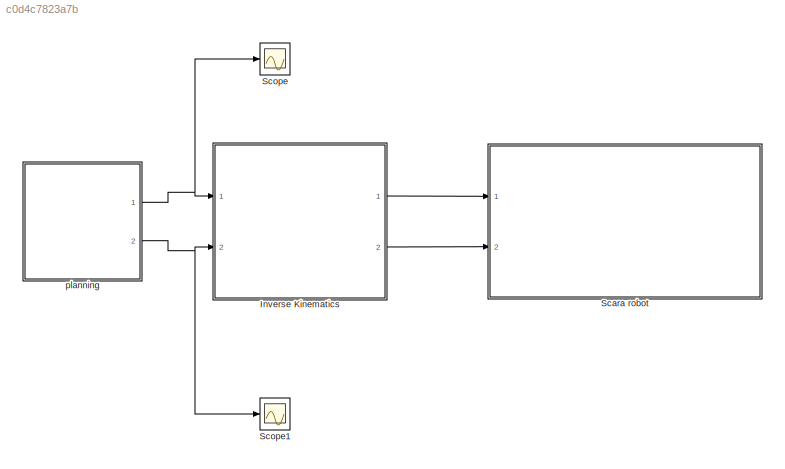
MODEL slx_c0d4c7823a7b
KIND model
CONFIG AbsTol = auto
CONFIG EnableMultiTasking = on
CONFIG FixedStep = auto
CONFIG MaxStep = auto
CONFIG MinStep = auto
CONFIG RelTol = 1e-3
CONFIG SampleTimeConstraint = Unconstrained
CONFIG SolverName = VariableStepAuto
CONFIG StartTime = 0.0
CONFIG StopTime = 20
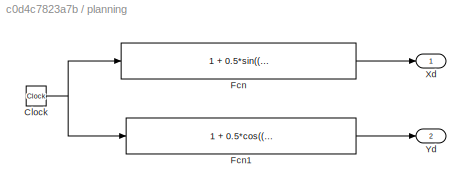
BLOCK [SubSystem]  planning
  Ports = [0, 2]
  RequestExecContextInheritance = off
BLOCK [Clock]  planning/Clock
BLOCK [Fcn]  planning/Fcn
  Expr = 1 + 0.5*sin((2*pi/5)*u + pi/2)
BLOCK [Fcn]  planning/Fcn1
  Expr = 1 + 0.5*cos((2*pi/5)*u + pi/2)
BLOCK [Outport]  planning/Xd
  VectorParamsAs1DForOutWhenUnconnected = off
BLOCK [Outport]  planning/Yd
  Port = 2
  VectorParamsAs1DForOutWhenUnconnected = off
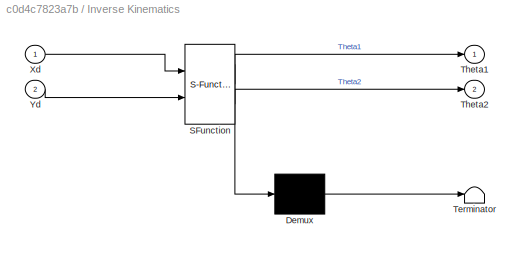
BLOCK [SubSystem] Inverse Kinematics
  ErrorFcn = Stateflow.Translate.translate
  PermitHierarchicalResolution = ExplicitOnly
  Ports = [2, 2]
  RequestExecContextInheritance = off
  SFBlockType = MATLAB Function
  TreatAsAtomicUnit = on
BLOCK [Demux] Inverse Kinematics/ Demux 
  Outputs = 1
  Ports = [1, 1]
BLOCK [S-Function] Inverse Kinematics/ SFunction 
  EnableBusSupport = on
  FunctionName = sf_sfun
  PortCounts = [2 3]
  Ports = [2, 3]
  SFcnIsStateOwnerBlock = off
  SFunctionDeploymentMode = off
  Tag = Stateflow S-Function 1
BLOCK [Terminator] Inverse Kinematics/ Terminator 
BLOCK [Outport] Inverse Kinematics/Theta1
  VectorParamsAs1DForOutWhenUnconnected = off
BLOCK [Outport] Inverse Kinematics/Theta2
  Port = 2
  VectorParamsAs1DForOutWhenUnconnected = off
BLOCK [Inport] Inverse Kinematics/Xd
BLOCK [Inport] Inverse Kinematics/Yd
  Port = 2
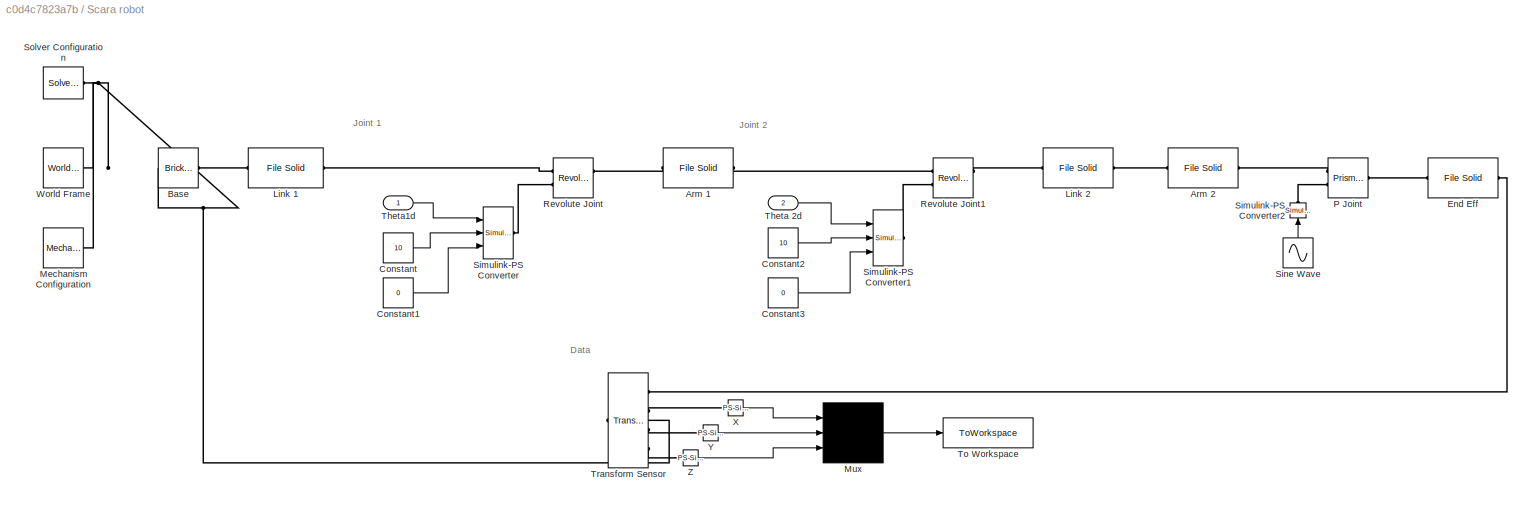
BLOCK [SubSystem] Scara robot
  Ports = [2]
  RequestExecContextInheritance = off
BLOCK [Reference] Scara robot/Arm 1  REF=sm_lib/Body Elements/File Solid
  NameLocation = top
  Ports = [0, 0, 0, 0, 0, 1, 1]
  SourceBlock = sm_lib/Body Elements/File Solid
  SourceProductBaseCode = MS
  SourceType = File Solid
BLOCK [Reference] Scara robot/Arm 2  REF=sm_lib/Body Elements/File Solid
  NameLocation = top
  Ports = [0, 0, 0, 0, 0, 1, 1]
  SourceBlock = sm_lib/Body Elements/File Solid
  SourceProductBaseCode = MS
  SourceType = File Solid
BLOCK [Reference] Scara robot/Base  REF=sm_lib/Body Elements/Brick Solid
  NameLocation = top
  Ports = [0, 0, 0, 0, 0, 1, 1]
  SourceBlock = sm_lib/Body Elements/Brick Solid
  SourceProductBaseCode = MS
  SourceType = Brick Solid
BLOCK [Constant] Scara robot/Constant
  Value = 10
BLOCK [Constant] Scara robot/Constant1
  Value = 0
BLOCK [Constant] Scara robot/Constant2
  Value = 10
BLOCK [Constant] Scara robot/Constant3
  Value = 0
BLOCK [Reference] Scara robot/End Eff  REF=sm_lib/Body Elements/File Solid
  NameLocation = top
  Ports = [0, 0, 0, 0, 0, 1, 1]
  SourceBlock = sm_lib/Body Elements/File Solid
  SourceProductBaseCode = MS
  SourceType = File Solid
BLOCK [Reference] Scara robot/Link 1  REF=sm_lib/Body Elements/File Solid
  Ports = [0, 0, 0, 0, 0, 1, 1]
  SourceBlock = sm_lib/Body Elements/File Solid
  SourceProductBaseCode = MS
  SourceType = File Solid
BLOCK [Reference] Scara robot/Link 2  REF=sm_lib/Body Elements/File Solid
  NameLocation = top
  Ports = [0, 0, 0, 0, 0, 1, 1]
  SourceBlock = sm_lib/Body Elements/File Solid
  SourceProductBaseCode = MS
  SourceType = File Solid
BLOCK [Reference] Scara robot/Mechanism Configuration  REF=sm_lib/Utilities/Mechanism
Configuration
  Ports = [0, 0, 0, 0, 0, 0, 1]
  SourceBlock = sm_lib/Utilities/Mechanism\nConfiguration
  SourceProductBaseCode = MS
  SourceType = Mechanism\nConfiguration
BLOCK [Mux] Scara robot/Mux
  Inputs = 3
  Ports = [3, 1]
BLOCK [Reference] Scara robot/P Joint  REF=sm_lib/Joints/Prismatic
Joint
  Ports = [0, 0, 0, 0, 0, 2, 1]
  SourceBlock = sm_lib/Joints/Prismatic\nJoint
  SourceProductBaseCode = MS
  SourceType = Prismatic\nJoint
BLOCK [Reference] Scara robot/Revolute Joint  REF=sm_lib/Joints/Revolute Joint
  Ports = [0, 0, 0, 0, 0, 2, 2]
  SourceBlock = sm_lib/Joints/Revolute Joint
  SourceProductBaseCode = MS
  SourceType = Revolute Joint
BLOCK [Reference] Scara robot/Revolute Joint1  REF=sm_lib/Joints/Revolute Joint
  Ports = [0, 0, 0, 0, 0, 2, 2]
  SourceBlock = sm_lib/Joints/Revolute Joint
  SourceProductBaseCode = MS
  SourceType = Revolute Joint
BLOCK [Reference] Scara robot/Simulink-PS Converter  REF=nesl_utility/Simulink-PS
Converter
  Ports = [3, 0, 0, 0, 0, 0, 1]
  SourceBlock = nesl_utility/Simulink-PS\nConverter
  SourceProductBaseCode = PW,SS
  SourceType = Simulink-PS\nConverter
BLOCK [Reference] Scara robot/Simulink-PS Converter1  REF=nesl_utility/Simulink-PS
Converter
  Ports = [3, 0, 0, 0, 0, 0, 1]
  SourceBlock = nesl_utility/Simulink-PS\nConverter
  SourceProductBaseCode = PW,SS
  SourceType = Simulink-PS\nConverter
BLOCK [Reference] Scara robot/Simulink-PS Converter2  REF=nesl_utility/Simulink-PS
Converter
  NameLocation = right
  Ports = [1, 0, 0, 0, 0, 0, 1]
  SourceBlock = nesl_utility/Simulink-PS\nConverter
  SourceProductBaseCode = PW,SS
  SourceType = Simulink-PS\nConverter
BLOCK [Sin] Scara robot/Sine Wave
  Amplitude = 0.01
  Bias = 0.01
  NameLocation = right
  Ports = [0, 1]
  SampleTime = 0
BLOCK [Reference] Scara robot/Solver Configuration  REF=nesl_utility/Solver
Configuration
  Ports = [0, 0, 0, 0, 0, 0, 1]
  SourceBlock = nesl_utility/Solver\nConfiguration
  SourceProductBaseCode = PW,SS
  SourceType = Solver\nConfiguration
BLOCK [Inport] Scara robot/Theta 2d
  Port = 2
BLOCK [Inport] Scara robot/Theta1d
BLOCK [ToWorkspace] Scara robot/To Workspace
  FixptAsFi = on
  MaxDataPoints = inf
  Ports = [1]
  SampleTime = -1
  SaveFormat = Timeseries
  VariableName = XYZPose
BLOCK [Reference] Scara robot/Transform Sensor  REF=sm_lib/Frames and
Transforms/Transform
Sensor
  Ports = [0, 0, 0, 0, 0, 1, 4]
  SourceBlock = sm_lib/Frames and\nTransforms/Transform\nSensor
  SourceProductBaseCode = MS
  SourceType = Transform\nSensor
BLOCK [Reference] Scara robot/World Frame  REF=sm_lib/Frames and
Transforms/World Frame
  Ports = [0, 0, 0, 0, 0, 0, 1]
  SourceBlock = sm_lib/Frames and\nTransforms/World Frame
  SourceProductBaseCode = MS
  SourceType = World Frame
BLOCK [Reference] Scara robot/X  REF=nesl_utility/PS-Simulink
Converter
  Ports = [0, 1, 0, 0, 0, 1]
  SourceBlock = nesl_utility/PS-Simulink\nConverter
  SourceProductBaseCode = PW,SS
  SourceType = PS-Simulink\nConverter
BLOCK [Reference] Scara robot/Y  REF=nesl_utility/PS-Simulink
Converter
  Ports = [0, 1, 0, 0, 0, 1]
  SourceBlock = nesl_utility/PS-Simulink\nConverter
  SourceProductBaseCode = PW,SS
  SourceType = PS-Simulink\nConverter
BLOCK [Reference] Scara robot/Z  REF=nesl_utility/PS-Simulink
Converter
  Ports = [0, 1, 0, 0, 0, 1]
  SourceBlock = nesl_utility/PS-Simulink\nConverter
  SourceProductBaseCode = PW,SS
  SourceType = PS-Simulink\nConverter
BLOCK [Scope] Scope
  Floating = off
  NumInputPorts = 1
  Ports = [1]
  ScopeSpecificationString = Simulink.scopes.TimeScopeBlockCfg('CurrentConfiguration', extmgr.ConfigurationSet(extmgr.Configuration('Core','General UI',true),extmgr.Configuration('Core','Source UI',true),extmgr.Configuration('Sources','WiredSimulink',true),extmgr.Configuration('Visuals','Time Domain',true,'SerializedDisplays',{struct('MinYLimReal','0.375','MaxYLimReal','1.625','YLabelReal','','MinYLimMag','0.375','MaxYLimMag'...<+1341ch>
BLOCK [Scope] Scope1
  Floating = off
  NumInputPorts = 1
  Ports = [1]
  ScopeSpecificationString = Simulink.scopes.TimeScopeBlockCfg('CurrentConfiguration', extmgr.ConfigurationSet(extmgr.Configuration('Core','General UI',true),extmgr.Configuration('Core','Source UI',true),extmgr.Configuration('Sources','WiredSimulink',true,'DataLoggingVariableName','ScopeData1'),extmgr.Configuration('Visuals','Time Domain',true,'SerializedDisplays',{struct('MinYLimReal','0.375','MaxYLimReal','1.625','YLabelRea...<+1381ch>
ANNOTATION Scara robot: Data
ANNOTATION Scara robot: Joint 1
ANNOTATION Scara robot: Joint 2
NET  planning/Clock:1 ->  planning/Fcn1:1,  planning/Fcn:1
LINE  planning/Fcn1:1 ->  planning/Yd:1
LINE  planning/Fcn:1 ->  planning/Xd:1
NET  planning:1 -> Inverse Kinematics:1, Scope:1
NET  planning:2 -> Inverse Kinematics:2, Scope1:1
LINE Inverse Kinematics:1 -> Scara robot:1
LINE Inverse Kinematics:2 -> Scara robot:2
LINE Scara robot/Constant1:1 -> Scara robot/Simulink-PS Converter:3
LINE Scara robot/Constant2:1 -> Scara robot/Simulink-PS Converter1:2
LINE Scara robot/Constant3:1 -> Scara robot/Simulink-PS Converter1:3
LINE Scara robot/Constant:1 -> Scara robot/Simulink-PS Converter:2
LINE Scara robot/Mux:1 -> Scara robot/To Workspace:1
LINE Scara robot/Sine Wave:1 -> Scara robot/Simulink-PS Converter2:1
LINE Scara robot/Theta 2d:1 -> Scara robot/Simulink-PS Converter1:1
LINE Scara robot/Theta1d:1 -> Scara robot/Simulink-PS Converter:1
LINE Scara robot/X:1 -> Scara robot/Mux:1
LINE Scara robot/Y:1 -> Scara robot/Mux:2
LINE Scara robot/Z:1 -> Scara robot/Mux:3
PLINE Scara robot/Arm 1:LConn1 -- Scara robot/Revolute Joint:RConn1
PLINE Scara robot/Arm 1:RConn1 -- Scara robot/Revolute Joint1:LConn1
PLINE Scara robot/Arm 2:LConn1 -- Scara robot/Link 2:RConn1
PLINE Scara robot/Arm 2:RConn1 -- Scara robot/P Joint:LConn1
PLINE Scara robot/Base:LConn1 -- Scara robot/Link 1:RConn1
PNET net1: Scara robot/Base:RConn1 -- Scara robot/Mechanism Configuration:RConn1 -- Scara robot/Solver Configuration:RConn1 -- Scara robot/Transform Sensor:LConn1 -- Scara robot/World Frame:RConn1
PLINE Scara robot/End Eff:LConn1 -- Scara robot/P Joint:RConn1
PLINE Scara robot/End Eff:RConn1 -- Scara robot/Transform Sensor:RConn1
PLINE Scara robot/Link 1:LConn1 -- Scara robot/Revolute Joint:LConn1
PLINE Scara robot/Link 2:LConn1 -- Scara robot/Revolute Joint1:RConn1
PLINE Scara robot/P Joint:LConn2 -- Scara robot/Simulink-PS Converter2:RConn1
PLINE Scara robot/Revolute Joint1:LConn2 -- Scara robot/Simulink-PS Converter1:RConn1
PLINE Scara robot/Revolute Joint:LConn2 -- Scara robot/Simulink-PS Converter:RConn1
PLINE Scara robot/Transform Sensor:RConn2 -- Scara robot/X:LConn1
PLINE Scara robot/Transform Sensor:RConn3 -- Scara robot/Y:LConn1
PLINE Scara robot/Transform Sensor:RConn4 -- Scara robot/Z:LConn1
note: NET lines group one-source signal fan-out (src -> all destinations, sorted); 1:1 wires keep LINE; PNET lines group multi-terminal physical nets as a canonical sorted terminal list (undirected conserving connections); 2-terminal nets keep the pairwise PLINE form
CHART Inverse Kinematics states=1 transitions=1
  STATE_LABEL 'eML_blk_kernel()'
  STATE_LABEL 'SCRIPT:\nfunction [Theta1,Theta2] = InverseKinematics(Xd,Yd)\n\nl1 = 1;\nl2 = 1;\n\nTheta2 = acos((Xd^2 + Yd^2 -l1^2 - l2^2)/(2*l1*l2));\n\ns_Theta2 = sin(Theta2);\nc_Theta2 = cos(Theta2);\n\nTheta1 = atan2(Yd,Xd) - atan2(l2*s_Theta2,(l1+l2*c_Theta2));\n\n'
CHART  states=0 transitions=0
